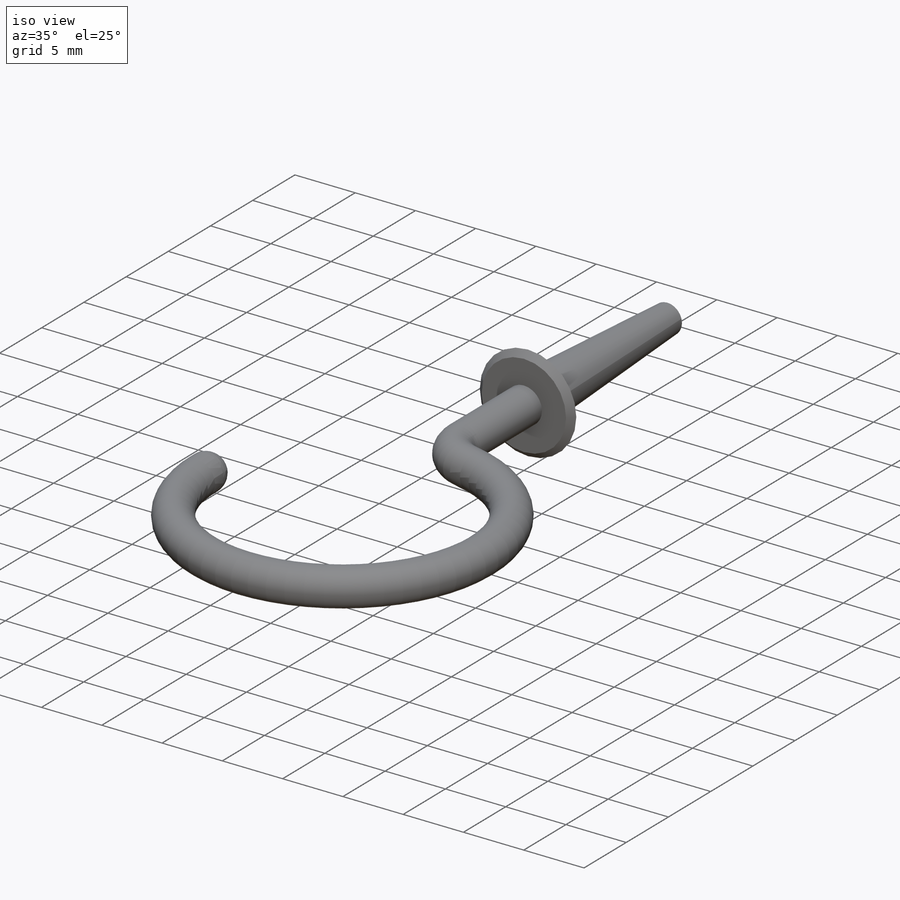
[diagram: iso view]
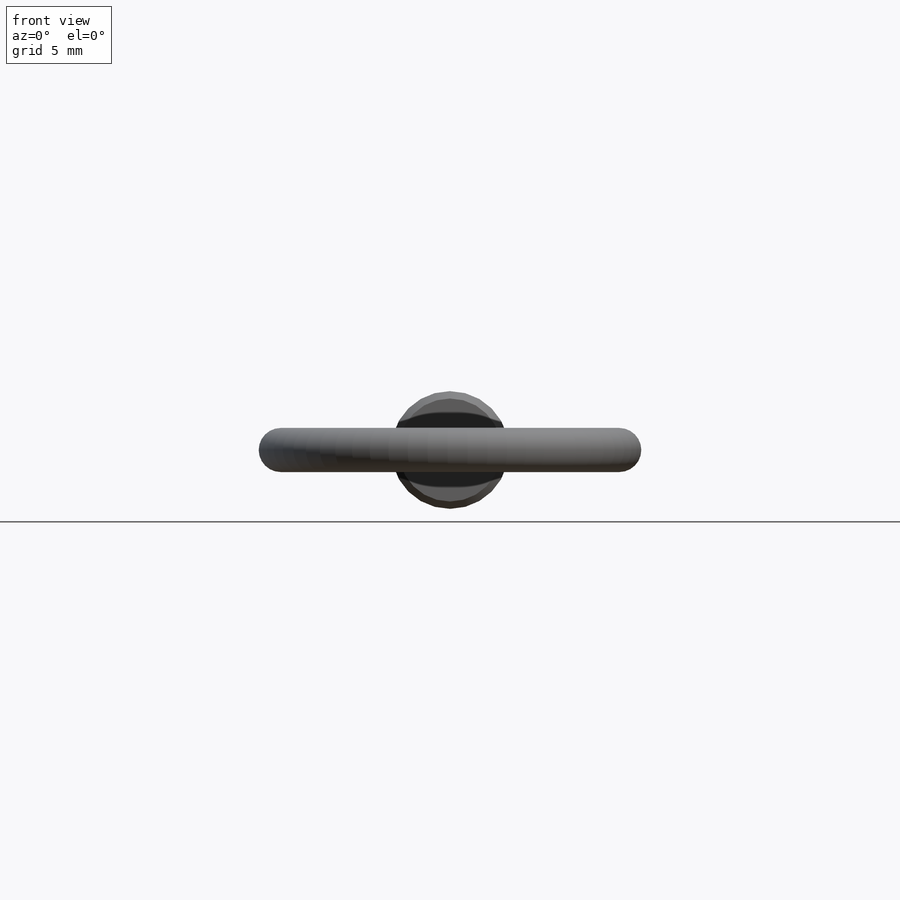
[diagram: front view]
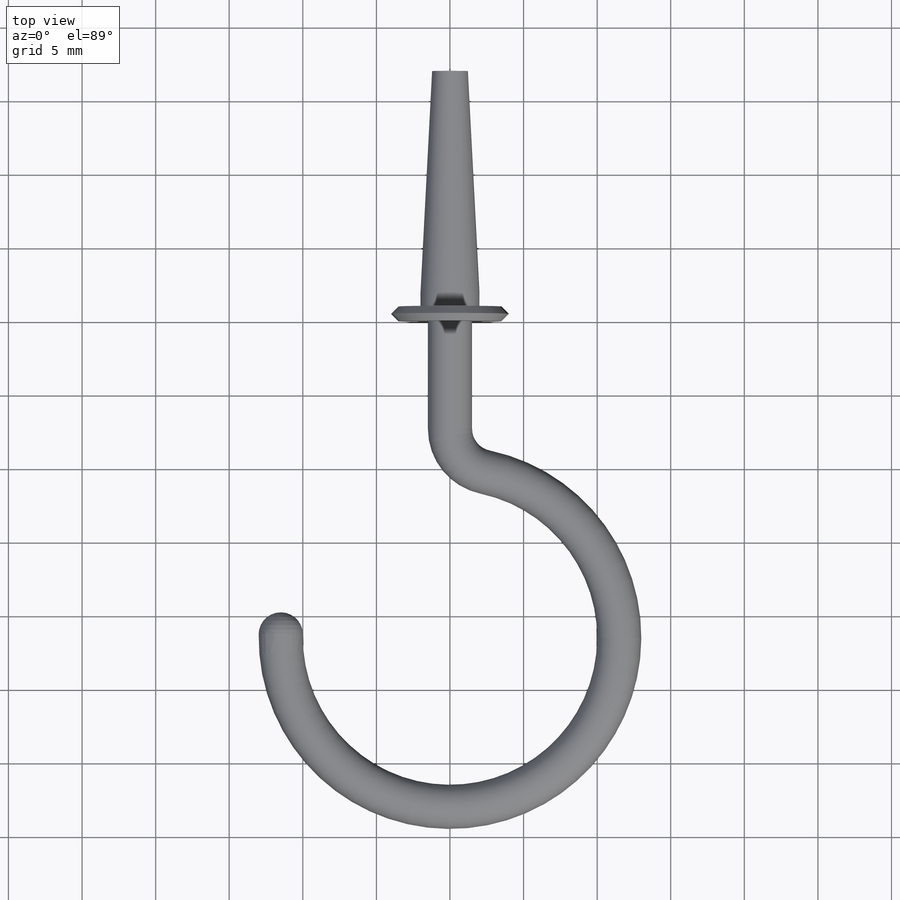
[diagram: top view]
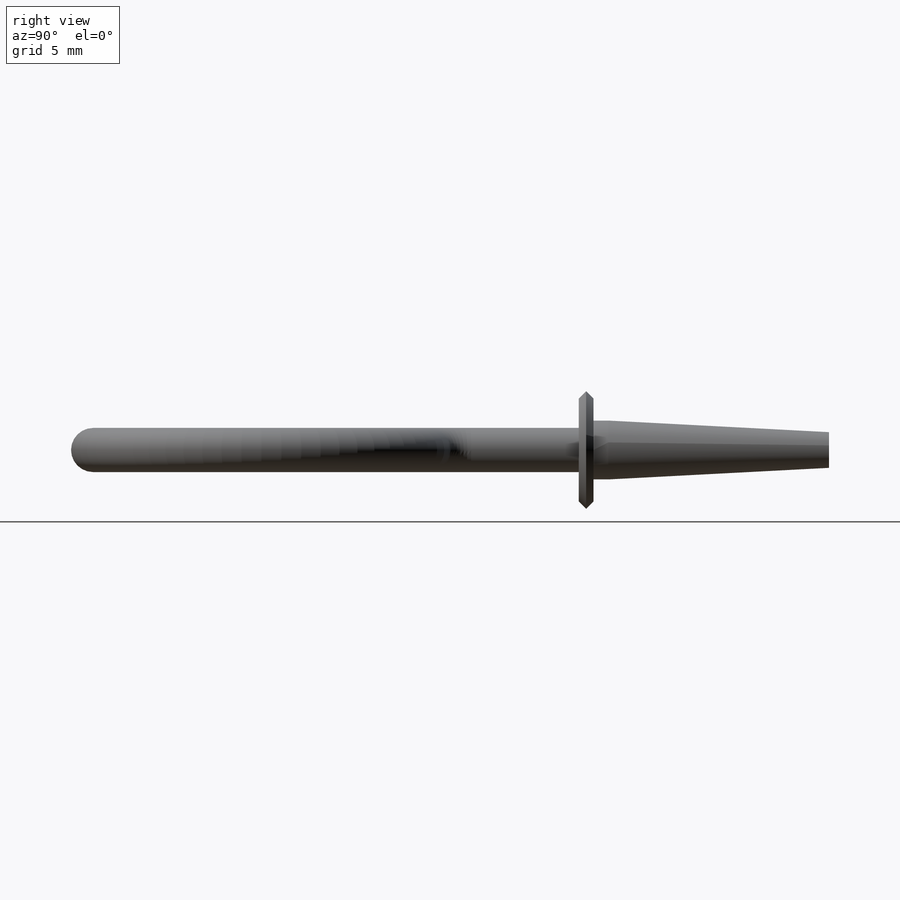
[diagram: right view]
SOLIDWORKS PART (.sldprt)
format: sldprt  version: not decoded by parser v0  size: 245,760 bytes
history: native  units: mm
features: sketch x4, extrude x2, chamfer x2, material x1, sweep x1, fillet x1 (+12 scaffold rows collapsed)
feature tree (23):
  scaffold x12  (default folders/planes/origin — collapsed)
  material  "Material <not specified>"
  sketch  "Sketch1"  dims[c1.D1=23.0mm c1.D3=3.0mm c1.D2=10.0mm c2.D3=15.0mm c2.D4=~32.664341mm]
  sketch  "Sketch3"  dims[D1=3.0mm]
  sweep  "Sweep1"
  sketch  "Sketch4"  dims[D1=8.0mm]
  extrude  "Boss-Extrude1"  Depth=1mm
  sketch  "Sketch5"  dims[D1=4.0mm]
  extrude  "Boss-Extrude2"  Depth=16mm
  chamfer  "Chamfer1"  Distance=15mm Angle=3deg
  chamfer  "Chamfer2"  Distance=0.5mm Angle=45deg
  fillet  "Fillet1"  Radius=1.5mm
decode coverage: 9 of 10 modeling features carry decoded parameters
note: ~ marks probable driven/reference dimensions
note: suppression state not decoded; provenance and decode notes live in map.json
